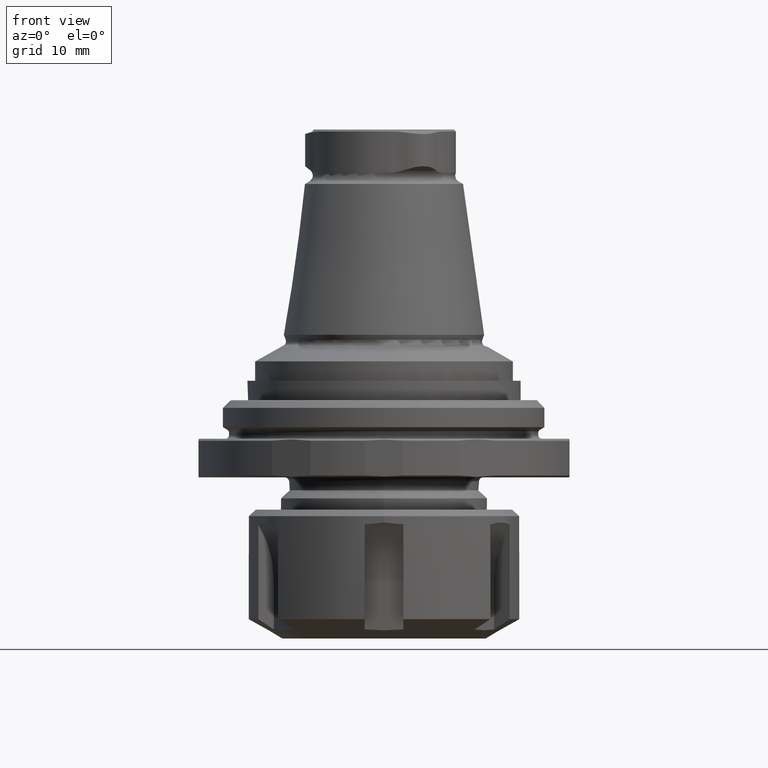
[diagram: clean part render]
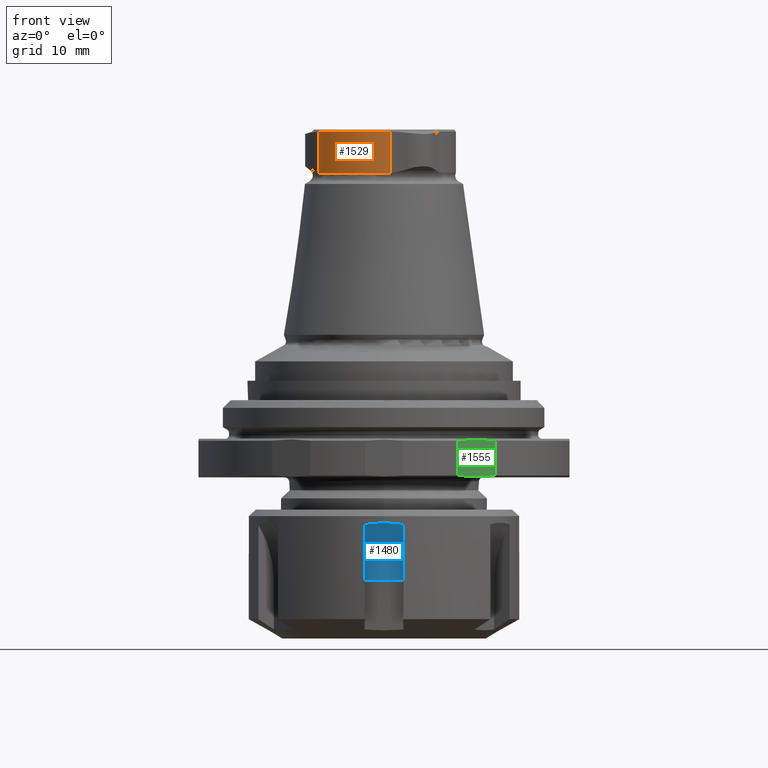
[diagram: same view with three faces highlighted in distinct colors, each labeled with its STEP entity id]
A machine part, front view with three faces highlighted in distinct colors.
Their STEP definitions:

[orange] entity #1529 — the highlighted cylindrical surface (partial cylindrical patch) has radius 11.15 mm, axis along (0, 0, 1).
#130=LINE('',#2662,#188);
#131=LINE('',#2669,#189);
#188=VECTOR('',#2022,1000.);
#189=VECTOR('',#2025,1000.);
#266=CYLINDRICAL_SURFACE('',#1691,11.15);
#535=ORIENTED_EDGE('',*,*,#849,.T.);
#536=ORIENTED_EDGE('',*,*,#833,.T.);
#537=ORIENTED_EDGE('',*,*,#847,.F.);
#538=ORIENTED_EDGE('',*,*,#850,.F.);
#833=EDGE_CURVE('',#1012,#1005,#1121,.T.);
#847=EDGE_CURVE('',#1020,#1005,#130,.T.);
#849=EDGE_CURVE('',#1021,#1012,#131,.T.);
#850=EDGE_CURVE('',#1021,#1020,#1125,.T.);
#1005=VERTEX_POINT('',#2571);
#1012=VERTEX_POINT('',#2601);
#1020=VERTEX_POINT('',#2663);
#1021=VERTEX_POINT('',#2670);
#1121=CIRCLE('',#1680,11.15);
#1125=CIRCLE('',#1692,11.15);
#1234=EDGE_LOOP('',(#535,#536,#537,#538));
#1374=FACE_BOUND('',#1234,.T.);
#1529=ADVANCED_FACE('',(#1374),#266,.T.);
#1680=AXIS2_PLACEMENT_3D('',#2613,#1997,#1998);
#1691=AXIS2_PLACEMENT_3D('',#2668,#2023,#2024);
#1692=AXIS2_PLACEMENT_3D('',#2671,#2026,#2027);
#1997=DIRECTION('',(-1.27319154200133E-16,7.79579225983867E-33,-1.));
#1998=DIRECTION('',(1.,-6.12303176911189E-17,-1.27319154200133E-16));
#2022=DIRECTION('',(0.,0.,1.));
#2023=DIRECTION('',(0.,0.,1.));
#2024=DIRECTION('',(-1.,6.12303176911189E-17,0.));
#2025=DIRECTION('',(0.,0.,1.));
#2026=DIRECTION('',(-1.27319154200133E-16,7.79579225983867E-33,-1.));
#2027=DIRECTION('',(1.,-6.12303176911189E-17,-1.27319154200133E-16));
#2571=CARTESIAN_POINT('',(-10.1373429951705,-4.64292763224691,46.6999999999994));
#2601=CARTESIAN_POINT('',(1.04777822012694,-11.1006603768167,46.7));
#2613=CARTESIAN_POINT('',(-1.02373612345724E-16,6.26836880711611E-33,46.7));
#2662=CARTESIAN_POINT('',(-10.1373429951705,-4.64292763224691,-41.9719056781409));
#2663=CARTESIAN_POINT('',(-10.1373429951706,-4.64292763224664,40.2670061667782));
#2668=CARTESIAN_POINT('',(-1.69228728690023E-13,-1.49518013622723E-14,-41.9719056781409));
#2669=CARTESIAN_POINT('',(1.04777822012694,-11.1006603768167,-41.9719056781409));
#2670=CARTESIAN_POINT('',(1.04777822012694,-11.1006603768167,40.2670061667788));
#2671=CARTESIAN_POINT('',(-1.67922634330326E-15,1.02819562475755E-31,40.267006166777));

[blue] entity #1480 — the highlighted cylindrical surface (partial cylindrical patch) has radius 15 mm, axis along (1, 0, 0).
#22=B_SPLINE_CURVE_WITH_KNOTS('',3,(#2264,#2265,#2266,#2267,#2268),
 .UNSPECIFIED.,.F.,.F.,(4,1,4),(0.,0.00300849357715145,0.0060169871543029),
 .UNSPECIFIED.);
#92=LINE('',#2260,#150);
#150=VECTOR('',#1818,1000.);
#252=CYLINDRICAL_SURFACE('',#1606,15.);
#299=ORIENTED_EDGE('',*,*,#725,.F.);
#300=ORIENTED_EDGE('',*,*,#726,.T.);
#301=ORIENTED_EDGE('',*,*,#727,.T.);
#302=ORIENTED_EDGE('',*,*,#728,.F.);
#725=EDGE_CURVE('',#940,#941,#1089,.T.);
#726=EDGE_CURVE('',#940,#942,#92,.T.);
#727=EDGE_CURVE('',#942,#943,#1090,.T.);
#728=EDGE_CURVE('',#941,#943,#22,.T.);
#940=VERTEX_POINT('',#2258);
#941=VERTEX_POINT('',#2259);
#942=VERTEX_POINT('',#2261);
#943=VERTEX_POINT('',#2263);
#1089=CIRCLE('',#1607,15.);
#1090=CIRCLE('',#1608,15.);
#1179=EDGE_LOOP('',(#299,#300,#301,#302));
#1319=FACE_BOUND('',#1179,.T.);
#1480=ADVANCED_FACE('',(#1319),#252,.F.);
#1606=AXIS2_PLACEMENT_3D('',#2256,#1814,#1815);
#1607=AXIS2_PLACEMENT_3D('',#2257,#1816,#1817);
#1608=AXIS2_PLACEMENT_3D('',#2262,#1819,#1820);
#1814=DIRECTION('',(1.,5.55111512312578E-17,0.));
#1815=DIRECTION('',(2.22044604925032E-16,-1.,0.));
#1816=DIRECTION('',(1.,5.55111512312578E-17,0.));
#1817=DIRECTION('',(0.,0.,-1.));
#1818=DIRECTION('',(1.,5.55111512312578E-17,0.));
#1819=DIRECTION('',(1.,5.55111512312578E-17,0.));
#1820=DIRECTION('',(0.,0.,-1.));
#2256=CARTESIAN_POINT('',(-2.99999999999999,-33.,-23.));
#2257=CARTESIAN_POINT('',(-2.99999999999999,-33.,-23.));
#2258=CARTESIAN_POINT('',(-3.,-18.,-23.));
#2259=CARTESIAN_POINT('',(-3.,-20.7846096908265,-14.2945856161495));
#2260=CARTESIAN_POINT('',(-3.,-18.,-23.));
#2261=CARTESIAN_POINT('',(3.,-18.,-23.));
#2262=CARTESIAN_POINT('',(3.00000000000001,-33.,-23.));
#2263=CARTESIAN_POINT('',(3.,-20.7846096908265,-14.2945856161495));
#2264=CARTESIAN_POINT('',(-3.,-20.7846096908265,-14.2945856161495));
#2265=CARTESIAN_POINT('',(-2.01272450011122,-20.9271106347328,-14.094629063539));
#2266=CARTESIAN_POINT('',(-0.0209146287660558,-21.0729032012567,-13.9053511626418));
#2267=CARTESIAN_POINT('',(2.01298746868177,-20.9270726784891,-14.0946823235346));
#2268=CARTESIAN_POINT('',(3.,-20.7846096908265,-14.2945856161495));

[green] entity #1555 — the highlighted planar face has unit normal (-0.5, 0.866, 0).
#83=B_SPLINE_CURVE_WITH_KNOTS('',3,(#2815,#2816,#2817,#2818),
 .UNSPECIFIED.,.F.,.F.,(4,4),(0.0123361877565685,0.019109524321464),
 .UNSPECIFIED.);
#84=B_SPLINE_CURVE_WITH_KNOTS('',3,(#2822,#2823,#2824,#2825),
 .UNSPECIFIED.,.F.,.F.,(4,4),(0.0123361877565685,0.019109524321464),
 .UNSPECIFIED.);
#141=LINE('',#2812,#199);
#142=LINE('',#2820,#200);
#199=VECTOR('',#2133,1000.);
#200=VECTOR('',#2134,1000.);
#234=PLANE('',#1740);
#622=ORIENTED_EDGE('',*,*,#894,.F.);
#623=ORIENTED_EDGE('',*,*,#895,.F.);
#624=ORIENTED_EDGE('',*,*,#896,.F.);
#625=ORIENTED_EDGE('',*,*,#897,.F.);
#894=EDGE_CURVE('',#1057,#1058,#141,.F.);
#895=EDGE_CURVE('',#1059,#1057,#83,.T.);
#896=EDGE_CURVE('',#1060,#1059,#142,.T.);
#897=EDGE_CURVE('',#1058,#1060,#84,.F.);
#1057=VERTEX_POINT('',#2813);
#1058=VERTEX_POINT('',#2814);
#1059=VERTEX_POINT('',#2819);
#1060=VERTEX_POINT('',#2821);
#1275=EDGE_LOOP('',(#622,#623,#624,#625));
#1415=FACE_BOUND('',#1275,.T.);
#1555=ADVANCED_FACE('',(#1415),#234,.F.);
#1740=AXIS2_PLACEMENT_3D('',#2811,#2131,#2132);
#2131=DIRECTION('',(-0.500000000000001,0.866025403784438,9.53727317343042E-19));
#2132=DIRECTION('',(2.60563148754756E-18,2.60563148754756E-18,-1.));
#2133=DIRECTION('',(2.60563148754756E-18,2.60563148754756E-18,-1.));
#2134=DIRECTION('',(2.60563148754756E-18,2.60563148754756E-18,-1.));
#2811=CARTESIAN_POINT('',(14.4,-24.9415316289918,-4.));
#2812=CARTESIAN_POINT('',(11.4555136271329,-26.6415316289918,-1.));
#2813=CARTESIAN_POINT('',(11.4555136271329,-26.6415316289918,-6.7));
#2814=CARTESIAN_POINT('',(11.4555136271329,-26.6415316289918,-1.3));
#2815=CARTESIAN_POINT('',(17.3444863728671,-23.2415316289918,-6.7));
#2816=CARTESIAN_POINT('',(15.3769568456743,-24.3774853311551,-6.96636155774863));
#2817=CARTESIAN_POINT('',(13.4139868211869,-25.5108066032041,-6.96513552328816));
#2818=CARTESIAN_POINT('',(11.4555136271329,-26.6415316289918,-6.70000000000001));
#2819=CARTESIAN_POINT('',(17.3444863728671,-23.2415316289918,-6.7));
#2820=CARTESIAN_POINT('',(17.3444863728671,-23.2415316289918,-1.));
#2821=CARTESIAN_POINT('',(17.3444863728671,-23.2415316289918,-1.3));
#2822=CARTESIAN_POINT('',(17.3444863728671,-23.2415316289918,-1.3));
#2823=CARTESIAN_POINT('',(15.3769568456743,-24.3774853311551,-1.03363844225138));
#2824=CARTESIAN_POINT('',(13.4139868211869,-25.5108066032041,-1.03486447671185));
#2825=CARTESIAN_POINT('',(11.4555136271329,-26.6415316289918,-1.3));